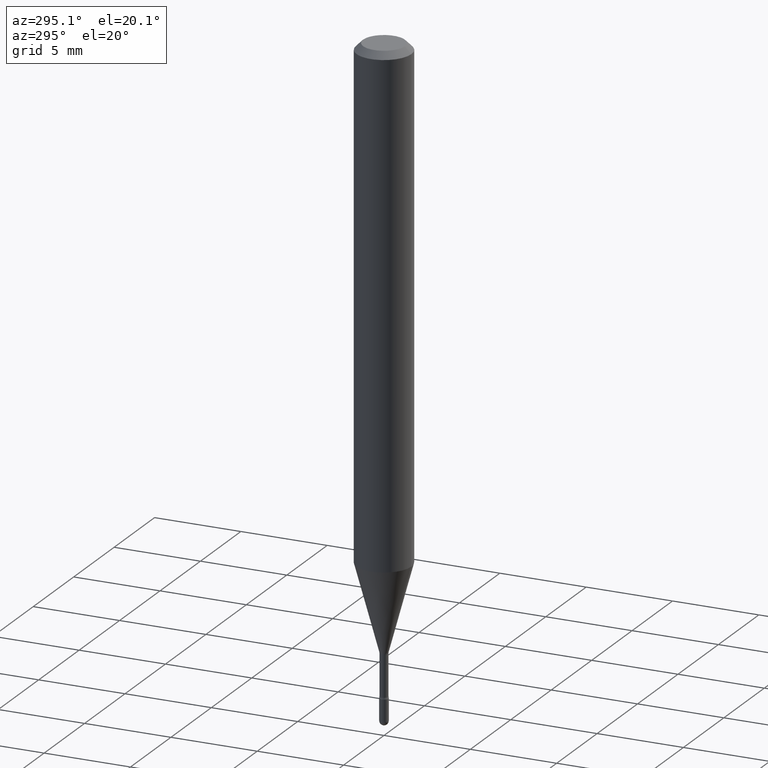
[diagram: clean part render]
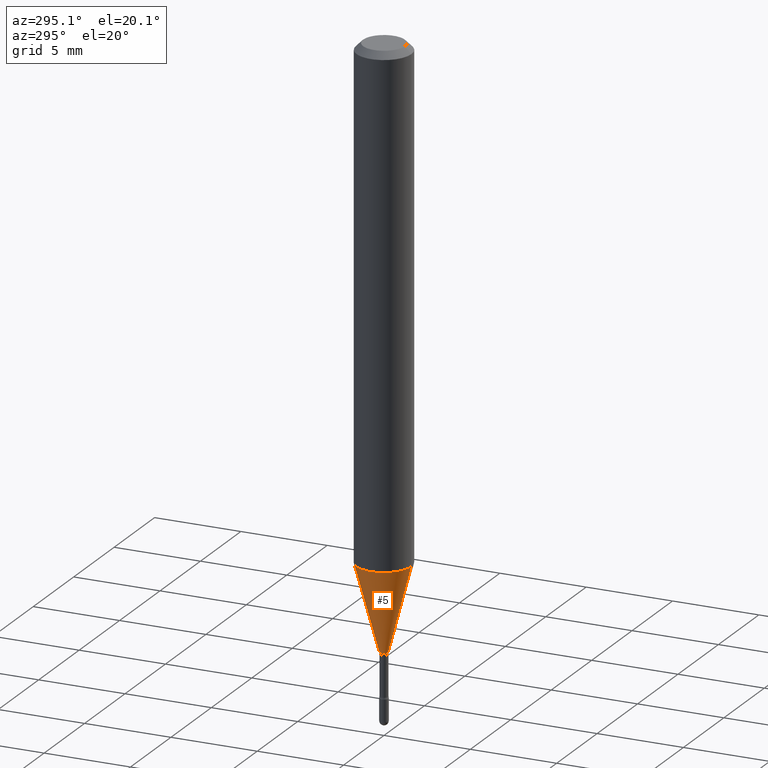
[diagram: same view with one face highlighted and labeled with its STEP entity id]
A machine part, auxiliary view. The second image highlights one B-rep face of the part: STEP entity #5.
In plain terms, the highlighted conical surface has half-angle 15 deg.
Its self-contained STEP definition (entity closure, byte-faithful):
#5 = ADVANCED_FACE ( 'NONE', ( #80 ), #40, .T. ) ;
#15 = CARTESIAN_POINT ( 'NONE',  ( 2.572559502513361655E-16, 0.009911112605659305394, -1.338092501787273347 ) ) ;
#17 = VERTEX_POINT ( 'NONE', #156 ) ;
#32 = CIRCLE ( 'NONE', #565, 0.009911112605663977004 ) ;
#40 = CONICAL_SURFACE ( 'NONE', #184, 0.009911112605663977004, 0.2617993877991500740 ) ;
#43 = EDGE_CURVE ( 'NONE', #375, #423, #260, .T. ) ;
#52 = VECTOR ( 'NONE', #349, 39.37007874015748854 ) ;
#75 = CARTESIAN_POINT ( 'NONE',  ( 3.272291353181348697E-29, -4.671885073502225665E-15, -1.338092501787273347 ) ) ;
#80 = FACE_OUTER_BOUND ( 'NONE', #471, .T. ) ;
#85 = ORIENTED_EDGE ( 'NONE', *, *, #43, .F. ) ;
#115 = ORIENTED_EDGE ( 'NONE', *, *, #199, .F. ) ;
#120 = AXIS2_PLACEMENT_3D ( 'NONE', #127, #173, #526 ) ;
#127 = CARTESIAN_POINT ( 'NONE',  ( 2.792328796693690568E-29, -3.986637440734242640E-15, -1.141828102118093380 ) ) ;
#130 = CARTESIAN_POINT ( 'NONE',  ( -4.364351673553637142E-16, -0.06250000000000398293, -1.141828102118092936 ) ) ;
#142 = DIRECTION ( 'NONE',  ( -2.445489642016968435E-29, 3.491451500746060163E-15, 1.000000000000000000 ) ) ;
#156 = CARTESIAN_POINT ( 'NONE',  ( -6.920892941966470292E-17, -0.009911112605668648615, -1.338092501787273347 ) ) ;
#157 = EDGE_CURVE ( 'NONE', #17, #248, #520, .T. ) ;
#173 = DIRECTION ( 'NONE',  ( -2.445489642016968435E-29, 3.491451500746060163E-15, 1.000000000000000000 ) ) ;
#184 = AXIS2_PLACEMENT_3D ( 'NONE', #75, #419, #344 ) ;
#188 = CARTESIAN_POINT ( 'NONE',  ( 4.440892098500903249E-16, 0.06249999999999600320, -1.141828102118093602 ) ) ;
#199 = EDGE_CURVE ( 'NONE', #423, #248, #395, .T. ) ;
#248 = VERTEX_POINT ( 'NONE', #130 ) ;
#256 = ORIENTED_EDGE ( 'NONE', *, *, #157, .T. ) ;
#260 = LINE ( 'NONE', #378, #388 ) ;
#330 = EDGE_CURVE ( 'NONE', #375, #17, #32, .T. ) ;
#344 = DIRECTION ( 'NONE',  ( -6.982962677686265922E-15, -1.000000000000000000, 0.000000000000000000 ) ) ;
#349 = DIRECTION ( 'NONE',  ( -1.807323732225328562E-15, -0.2588190451025179639, 0.9659258262890690894 ) ) ;
#354 = CARTESIAN_POINT ( 'NONE',  ( -6.920892941966470292E-17, -0.009911112605668648615, -1.338092501787273347 ) ) ;
#365 = ORIENTED_EDGE ( 'NONE', *, *, #330, .T. ) ;
#366 = CARTESIAN_POINT ( 'NONE',  ( 3.272291353181348697E-29, -4.671885073502225665E-15, -1.338092501787273347 ) ) ;
#375 = VERTEX_POINT ( 'NONE', #15 ) ;
#378 = CARTESIAN_POINT ( 'NONE',  ( 7.042269065258168553E-17, 0.009911112605659305394, -1.338092501787273347 ) ) ;
#388 = VECTOR ( 'NONE', #519, 39.37007874015748854 ) ;
#395 = CIRCLE ( 'NONE', #120, 0.06250000000000000000 ) ;
#419 = DIRECTION ( 'NONE',  ( -2.445489642016968435E-29, 3.491451500746060163E-15, 1.000000000000000000 ) ) ;
#423 = VERTEX_POINT ( 'NONE', #188 ) ;
#452 = DIRECTION ( 'NONE',  ( -6.982962677686265922E-15, -1.000000000000000000, 0.000000000000000000 ) ) ;
#471 = EDGE_LOOP ( 'NONE', ( #85, #365, #256, #115 ) ) ;
#519 = DIRECTION ( 'NONE',  ( 1.839019923739598738E-15, 0.2588190451025247363, 0.9659258262890673130 ) ) ;
#520 = LINE ( 'NONE', #354, #52 ) ;
#526 = DIRECTION ( 'NONE',  ( -6.982962677686265922E-15, -1.000000000000000000, 4.370956789862821150E-15 ) ) ;
#565 = AXIS2_PLACEMENT_3D ( 'NONE', #366, #142, #452 ) ;